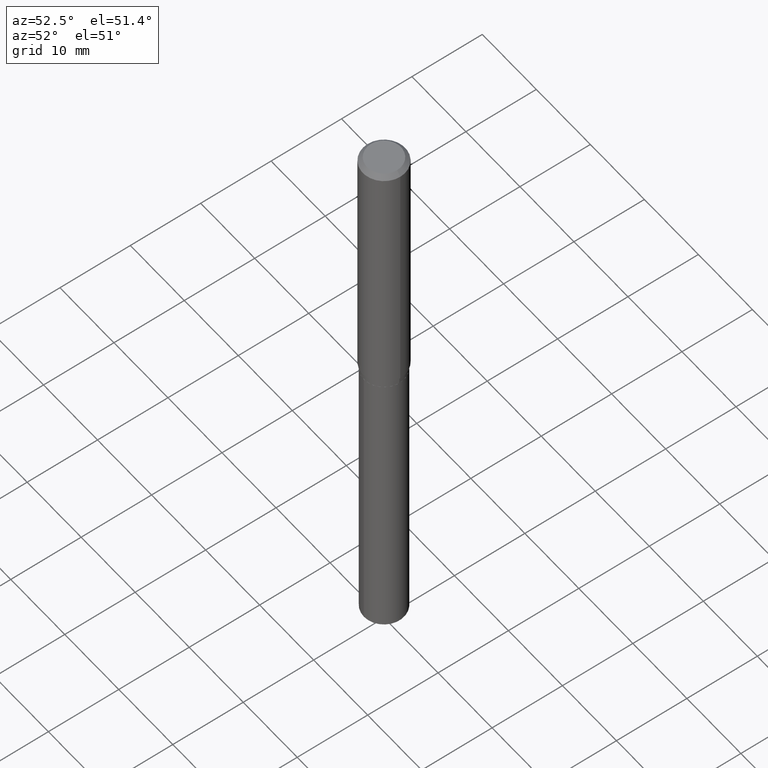
[diagram: clean part render]
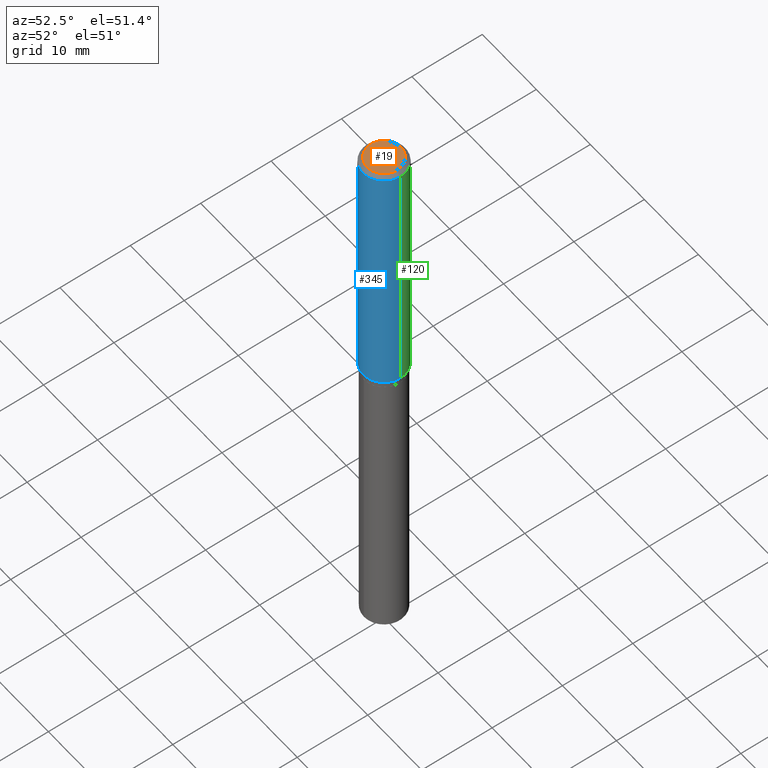
[diagram: same view with three faces highlighted in distinct colors, each labeled with its STEP entity id]
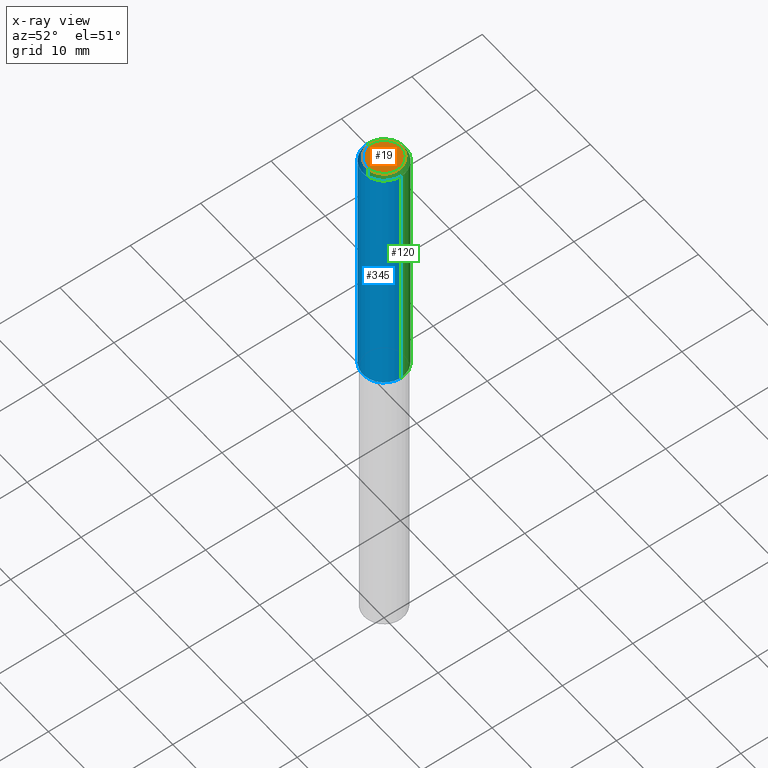
[diagram: x-ray of the same camera — body ghosted, the three highlighted faces saturated]
A machine part, auxiliary view with three faces highlighted in distinct colors.
The next image is the same camera in x-ray (body ghosted, the three faces saturated) — at least one of them is partly hidden behind the body in this view.
Their STEP definitions:

[orange] entity #19 — the highlighted planar face has unit normal (0, -0, -1).
#8 = AXIS2_PLACEMENT_3D ( 'NONE', #474, #138, #289 ) ;
#19 = ADVANCED_FACE ( 'NONE', ( #470 ), #398, .F. ) ;
#28 = EDGE_CURVE ( 'NONE', #155, #48, #42, .T. ) ;
#42 = CIRCLE ( 'NONE', #482, 0.09447999999999998066 ) ;
#48 = VERTEX_POINT ( 'NONE', #56 ) ;
#56 = CARTESIAN_POINT ( 'NONE',  ( 0.09447999999999998066, -7.704367267948738690E-16, -1.928573779296752193E-17 ) ) ;
#90 = EDGE_CURVE ( 'NONE', #48, #155, #115, .T. ) ;
#115 = CIRCLE ( 'NONE', #8, 0.09447999999999998066 ) ;
#123 = EDGE_LOOP ( 'NONE', ( #173, #342 ) ) ;
#138 = DIRECTION ( 'NONE',  ( -2.445468806185136597E-29, 3.491481338843145583E-15, 1.000000000000000000 ) ) ;
#144 = CARTESIAN_POINT ( 'NONE',  ( -0.09447999999999998066, 7.009847083995354710E-16, -1.928573779297727792E-17 ) ) ;
#155 = VERTEX_POINT ( 'NONE', #144 ) ;
#168 = DIRECTION ( 'NONE',  ( 1.000000000000000000, -6.982962677686267499E-15, 4.875432709231658792E-29 ) ) ;
#173 = ORIENTED_EDGE ( 'NONE', *, *, #28, .T. ) ;
#204 = DIRECTION ( 'NONE',  ( -2.445468806185136597E-29, 3.491481338843145583E-15, 1.000000000000000000 ) ) ;
#208 = CARTESIAN_POINT ( 'NONE',  ( 4.716267017698007905E-46, -6.733579360998555036E-32, -1.928573779297252010E-17 ) ) ;
#212 = DIRECTION ( 'NONE',  ( 2.438088387897960049E-29, -3.491481338843145188E-15, -1.000000000000000000 ) ) ;
#216 = AXIS2_PLACEMENT_3D ( 'NONE', #392, #212, #441 ) ;
#289 = DIRECTION ( 'NONE',  ( 1.000000000000000000, -6.982962677686267499E-15, 4.875432709231658792E-29 ) ) ;
#342 = ORIENTED_EDGE ( 'NONE', *, *, #90, .T. ) ;
#392 = CARTESIAN_POINT ( 'NONE',  ( 2.358133508849003952E-46, -3.366789680499277518E-32, -9.642868896486260050E-18 ) ) ;
#398 = PLANE ( 'NONE',  #216 ) ;
#441 = DIRECTION ( 'NONE',  ( -1.000000000000000000, 6.982962677686265922E-15, -4.876176775795935793E-29 ) ) ;
#470 = FACE_OUTER_BOUND ( 'NONE', #123, .T. ) ;
#474 = CARTESIAN_POINT ( 'NONE',  ( 4.716267017698007905E-46, -6.733579360998555036E-32, -1.928573779297252010E-17 ) ) ;
#482 = AXIS2_PLACEMENT_3D ( 'NONE', #208, #204, #168 ) ;

[blue] entity #345 — the highlighted cylindrical surface (edge-blend (fillet) strip) has radius 2.9997 mm, axis along (-0, 0, 1).
#4 = ORIENTED_EDGE ( 'NONE', *, *, #311, .F. ) ;
#7 = CARTESIAN_POINT ( 'NONE',  ( 3.560847128686177889E-29, -5.083945977489504641E-15, -1.456100000000000172 ) ) ;
#15 = VERTEX_POINT ( 'NONE', #21 ) ;
#21 = CARTESIAN_POINT ( 'NONE',  ( 0.1181000000000001632, -5.908633869724253693E-15, -1.456100000000000172 ) ) ;
#27 = CIRCLE ( 'NONE', #476, 0.1180999999999999966 ) ;
#47 = ORIENTED_EDGE ( 'NONE', *, *, #369, .F. ) ;
#54 = VERTEX_POINT ( 'NONE', #250 ) ;
#66 = CARTESIAN_POINT ( 'NONE',  ( 5.776197320209327532E-31, -8.246878922347559293E-17, -0.02362000000000014088 ) ) ;
#93 = DIRECTION ( 'NONE',  ( 1.000000000000000000, -6.982962677686266711E-15, 0.000000000000000000 ) ) ;
#94 = EDGE_CURVE ( 'NONE', #15, #352, #177, .T. ) ;
#101 = CARTESIAN_POINT ( 'NONE',  ( 0.1181000000000000799, -8.246878922347486570E-16, 5.758764772215004644E-30 ) ) ;
#106 = AXIS2_PLACEMENT_3D ( 'NONE', #147, #295, #368 ) ;
#124 = DIRECTION ( 'NONE',  ( -2.445468806185136877E-29, 3.491481338843145188E-15, 1.000000000000000000 ) ) ;
#147 = CARTESIAN_POINT ( 'NONE',  ( 0.000000000000000000, 0.000000000000000000, 0.000000000000000000 ) ) ;
#154 = EDGE_LOOP ( 'NONE', ( #4, #193, #359, #47 ) ) ;
#164 = VERTEX_POINT ( 'NONE', #291 ) ;
#170 = CIRCLE ( 'NONE', #432, 0.1181000000000001632 ) ;
#177 = LINE ( 'NONE', #101, #396 ) ;
#193 = ORIENTED_EDGE ( 'NONE', *, *, #433, .T. ) ;
#229 = CARTESIAN_POINT ( 'NONE',  ( -0.1181000000000000799, 8.391509709326788873E-16, -5.809262341591047988E-30 ) ) ;
#246 = DIRECTION ( 'NONE',  ( 1.000000000000000000, -6.982962677686263555E-15, 0.000000000000000000 ) ) ;
#250 = CARTESIAN_POINT ( 'NONE',  ( -0.1180999999999999966, -1.744056412423810669E-15, -0.02362000000000014088 ) ) ;
#283 = DIRECTION ( 'NONE',  ( -2.445468806185136597E-29, 3.491481338843145583E-15, 1.000000000000000000 ) ) ;
#290 = CARTESIAN_POINT ( 'NONE',  ( 0.1180999999999999966, -9.071566814582237199E-16, -0.02362000000000014088 ) ) ;
#291 = CARTESIAN_POINT ( 'NONE',  ( -0.1181000000000001632, -4.244795006556825655E-15, -1.456100000000000172 ) ) ;
#295 = DIRECTION ( 'NONE',  ( -2.445468806185136597E-29, 3.491481338843145583E-15, 1.000000000000000000 ) ) ;
#311 = EDGE_CURVE ( 'NONE', #164, #54, #486, .T. ) ;
#345 = ADVANCED_FACE ( 'NONE', ( #462 ), #429, .T. ) ;
#352 = VERTEX_POINT ( 'NONE', #290 ) ;
#359 = ORIENTED_EDGE ( 'NONE', *, *, #94, .T. ) ;
#365 = VECTOR ( 'NONE', #377, 39.37007874015748143 ) ;
#368 = DIRECTION ( 'NONE',  ( 1.000000000000000000, -6.982962677686266711E-15, 4.876176775795936353E-29 ) ) ;
#369 = EDGE_CURVE ( 'NONE', #54, #352, #27, .T. ) ;
#377 = DIRECTION ( 'NONE',  ( -2.445468806185136877E-29, 3.491481338843145188E-15, 1.000000000000000000 ) ) ;
#396 = VECTOR ( 'NONE', #124, 39.37007874015748143 ) ;
#419 = DIRECTION ( 'NONE',  ( -2.445468806185136597E-29, 3.491481338843145583E-15, 1.000000000000000000 ) ) ;
#429 = CYLINDRICAL_SURFACE ( 'NONE', #106, 0.1181000000000000799 ) ;
#432 = AXIS2_PLACEMENT_3D ( 'NONE', #7, #283, #246 ) ;
#433 = EDGE_CURVE ( 'NONE', #164, #15, #170, .T. ) ;
#462 = FACE_OUTER_BOUND ( 'NONE', #154, .T. ) ;
#476 = AXIS2_PLACEMENT_3D ( 'NONE', #66, #419, #93 ) ;
#486 = LINE ( 'NONE', #229, #365 ) ;

[green] entity #120 — the highlighted cylindrical surface (edge-blend (fillet) strip) has radius 2.9997 mm, axis along (-0, 0, 1).
#1 = ORIENTED_EDGE ( 'NONE', *, *, #245, .T. ) ;
#15 = VERTEX_POINT ( 'NONE', #21 ) ;
#21 = CARTESIAN_POINT ( 'NONE',  ( 0.1181000000000001632, -5.908633869724253693E-15, -1.456100000000000172 ) ) ;
#54 = VERTEX_POINT ( 'NONE', #250 ) ;
#65 = EDGE_LOOP ( 'NONE', ( #1, #84, #79, #316 ) ) ;
#67 = CYLINDRICAL_SURFACE ( 'NONE', #307, 0.1181000000000000799 ) ;
#79 = ORIENTED_EDGE ( 'NONE', *, *, #159, .F. ) ;
#84 = ORIENTED_EDGE ( 'NONE', *, *, #311, .T. ) ;
#94 = EDGE_CURVE ( 'NONE', #15, #352, #177, .T. ) ;
#101 = CARTESIAN_POINT ( 'NONE',  ( 0.1181000000000000799, -8.246878922347486570E-16, 5.758764772215004644E-30 ) ) ;
#103 = DIRECTION ( 'NONE',  ( 1.000000000000000000, -6.982962677686266711E-15, 0.000000000000000000 ) ) ;
#110 = CARTESIAN_POINT ( 'NONE',  ( 3.560847128686177889E-29, -5.083945977489504641E-15, -1.456100000000000172 ) ) ;
#120 = ADVANCED_FACE ( 'NONE', ( #259 ), #67, .T. ) ;
#124 = DIRECTION ( 'NONE',  ( -2.445468806185136877E-29, 3.491481338843145188E-15, 1.000000000000000000 ) ) ;
#159 = EDGE_CURVE ( 'NONE', #352, #54, #411, .T. ) ;
#164 = VERTEX_POINT ( 'NONE', #291 ) ;
#177 = LINE ( 'NONE', #101, #396 ) ;
#218 = CARTESIAN_POINT ( 'NONE',  ( 0.000000000000000000, 0.000000000000000000, 0.000000000000000000 ) ) ;
#225 = DIRECTION ( 'NONE',  ( -2.445468806185136597E-29, 3.491481338843145583E-15, 1.000000000000000000 ) ) ;
#229 = CARTESIAN_POINT ( 'NONE',  ( -0.1181000000000000799, 8.391509709326788873E-16, -5.809262341591047988E-30 ) ) ;
#245 = EDGE_CURVE ( 'NONE', #15, #164, #404, .T. ) ;
#250 = CARTESIAN_POINT ( 'NONE',  ( -0.1180999999999999966, -1.744056412423810669E-15, -0.02362000000000014088 ) ) ;
#259 = FACE_OUTER_BOUND ( 'NONE', #65, .T. ) ;
#290 = CARTESIAN_POINT ( 'NONE',  ( 0.1180999999999999966, -9.071566814582237199E-16, -0.02362000000000014088 ) ) ;
#291 = CARTESIAN_POINT ( 'NONE',  ( -0.1181000000000001632, -4.244795006556825655E-15, -1.456100000000000172 ) ) ;
#307 = AXIS2_PLACEMENT_3D ( 'NONE', #218, #225, #405 ) ;
#311 = EDGE_CURVE ( 'NONE', #164, #54, #486, .T. ) ;
#316 = ORIENTED_EDGE ( 'NONE', *, *, #94, .F. ) ;
#347 = AXIS2_PLACEMENT_3D ( 'NONE', #479, #450, #103 ) ;
#352 = VERTEX_POINT ( 'NONE', #290 ) ;
#365 = VECTOR ( 'NONE', #377, 39.37007874015748143 ) ;
#376 = DIRECTION ( 'NONE',  ( -2.445468806185136597E-29, 3.491481338843145583E-15, 1.000000000000000000 ) ) ;
#377 = DIRECTION ( 'NONE',  ( -2.445468806185136877E-29, 3.491481338843145188E-15, 1.000000000000000000 ) ) ;
#396 = VECTOR ( 'NONE', #124, 39.37007874015748143 ) ;
#404 = CIRCLE ( 'NONE', #452, 0.1181000000000001632 ) ;
#405 = DIRECTION ( 'NONE',  ( 1.000000000000000000, -6.982962677686266711E-15, 4.876176775795936353E-29 ) ) ;
#411 = CIRCLE ( 'NONE', #347, 0.1180999999999999966 ) ;
#450 = DIRECTION ( 'NONE',  ( -2.445468806185136597E-29, 3.491481338843145583E-15, 1.000000000000000000 ) ) ;
#452 = AXIS2_PLACEMENT_3D ( 'NONE', #110, #376, #483 ) ;
#479 = CARTESIAN_POINT ( 'NONE',  ( 5.776197320209327532E-31, -8.246878922347559293E-17, -0.02362000000000014088 ) ) ;
#483 = DIRECTION ( 'NONE',  ( 1.000000000000000000, -6.982962677686263555E-15, 0.000000000000000000 ) ) ;
#486 = LINE ( 'NONE', #229, #365 ) ;